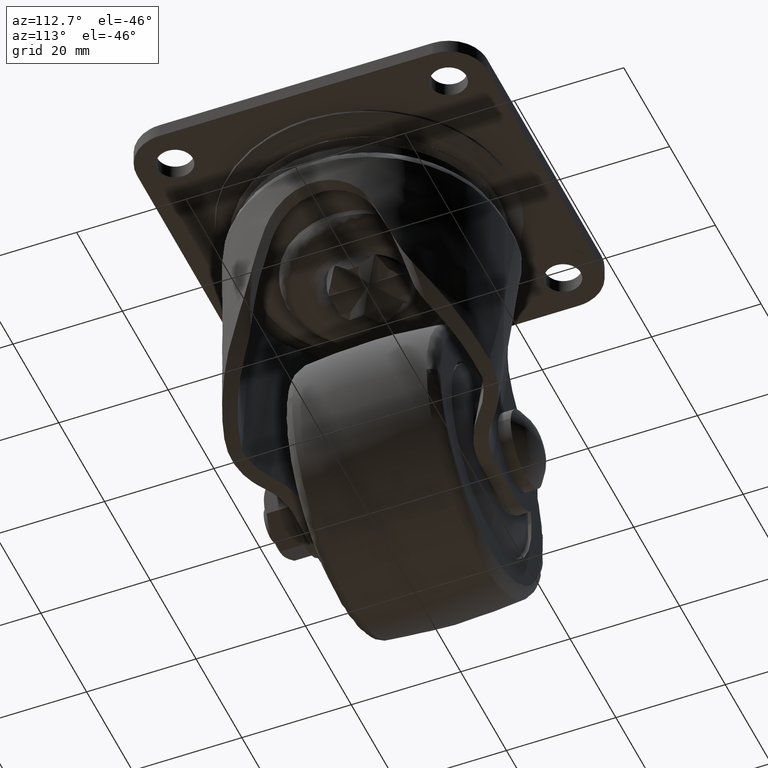
[diagram: clean part render]
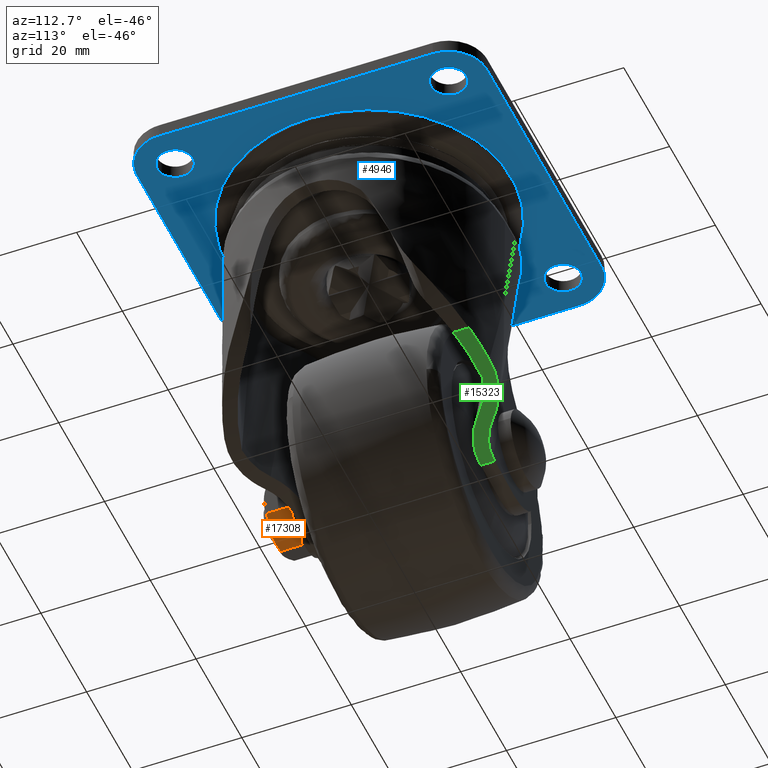
[diagram: same view with three faces highlighted in distinct colors, each labeled with its STEP entity id]
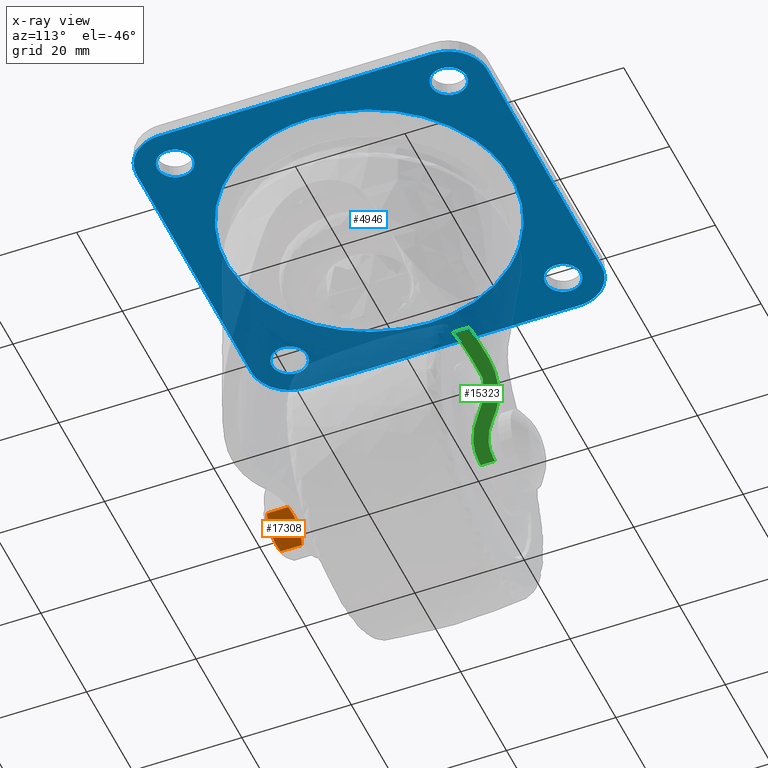
[diagram: x-ray of the same camera — body ghosted, the three highlighted faces saturated]
A machine part, auxiliary view with three faces highlighted in distinct colors.
The next image is the same camera in x-ray (body ghosted, the three faces saturated) — at least one of them is partly hidden behind the body in this view.
Their STEP definitions:

[orange] entity #17308 — the highlighted face is a freeform B-spline surface patch.
#16831=CARTESIAN_POINT('',(-20.0,-24.564101000000051,-53.928078999999997));
#16832=VERTEX_POINT('',#16831);
#16846=CARTESIAN_POINT('',(-16.999999933062298,-25.100000000000001,-52.196027961353487));
#16847=VERTEX_POINT('',#16846);
#16848=CARTESIAN_POINT('',(-20.0,-24.564101000000051,-53.928078999999997));
#16849=CARTESIAN_POINT('',(-19.510157182018119,-24.727382185400678,-53.645268085757152));
#16850=CARTESIAN_POINT('',(-19.016742850308880,-24.861955547747129,-53.360395156873381));
#16851=CARTESIAN_POINT('',(-18.268903120814539,-25.001776452272189,-52.928629639769937));
#16852=CARTESIAN_POINT('',(-18.018333753908468,-25.038018766028792,-52.783963332263603));
#16853=CARTESIAN_POINT('',(-17.514276700824659,-25.087045946738620,-52.492945824646647));
#16854=CARTESIAN_POINT('',(-17.260786492863652,-25.099810543600839,-52.346593168583652));
#16855=CARTESIAN_POINT('',(-17.003821179618861,-25.099999508764171,-52.198234159326667));
#16856=CARTESIAN_POINT('',(-17.001910626792689,-25.100000205893441,-52.197131101015643));
#16857=CARTESIAN_POINT('',(-16.999999933062298,-25.100000000000001,-52.196027961353487));
#16858=B_SPLINE_CURVE_WITH_KNOTS('',3,(#16848,#16849,#16850,#16851,#16852,#16853,#16854,#16855,#16856,#16857),.UNSPECIFIED.,.F.,.U.,(4,2,2,2,4),(0.0,0.249999999999997,0.374999999999995,0.499999999999994,0.500936272813872),.UNSPECIFIED.);
#16859=EDGE_CURVE('',#16832,#16847,#16858,.T.);
#17167=CARTESIAN_POINT('',(-14.0,-24.564101044625300,-50.463977000000099));
#17168=VERTEX_POINT('',#17167);
#17169=CARTESIAN_POINT('',(-16.999999933062298,-25.100000000000001,-52.196027961353487));
#17170=CARTESIAN_POINT('',(-16.874364086421799,-25.099999509185398,-52.123492063416997));
#17171=CARTESIAN_POINT('',(-16.748119019843081,-25.096939593321618,-52.050604432146081));
#17172=CARTESIAN_POINT('',(-16.494846267774321,-25.084703005226931,-51.904377324314943));
#17173=CARTESIAN_POINT('',(-16.367697508052750,-25.075448261747521,-51.830967945506757));
#17174=CARTESIAN_POINT('',(-15.987523585174040,-25.038814426564311,-51.611474404408121));
#17175=CARTESIAN_POINT('',(-15.735773752973399,-25.002544993666319,-51.466126554870478));
#17176=CARTESIAN_POINT('',(-14.985006336294200,-24.862492083861682,-51.032670736594959));
#17177=CARTESIAN_POINT('',(-14.490453367199930,-24.727585741266751,-50.747140415037400));
#17178=CARTESIAN_POINT('',(-14.0,-24.564101044625300,-50.463977000000099));
#17179=B_SPLINE_CURVE_WITH_KNOTS('',3,(#17169,#17170,#17171,#17172,#17173,#17174,#17175,#17176,#17177,#17178),.UNSPECIFIED.,.F.,.U.,(4,2,2,2,4),(0.500936272813872,0.562499999999994,0.624999999999993,0.749999999999996,1.0),.UNSPECIFIED.);
#17180=EDGE_CURVE('',#16847,#17168,#17179,.T.);
#17216=CARTESIAN_POINT('',(-20.0,-20.635898000000001,-53.928078999999997));
#17217=VERTEX_POINT('',#17216);
#17218=CARTESIAN_POINT('',(-20.0,-24.564101000000051,-53.928078999999997));
#17219=CARTESIAN_POINT('',(-20.0,-20.635898000000001,-53.928078999999997));
#17220=QUASI_UNIFORM_CURVE('',1,(#17218,#17219),.UNSPECIFIED.,.F.,.U.);
#17221=EDGE_CURVE('',#16832,#17217,#17220,.T.);
#17263=CARTESIAN_POINT('',(-13.700300392443831,-25.349750394873329,-50.290945331677683));
#17264=CARTESIAN_POINT('',(-20.299699232046951,-25.349750394873329,-54.101110451521947));
#17265=CARTESIAN_POINT('',(-13.700300392443831,-19.850250230975451,-50.290945331677683));
#17266=CARTESIAN_POINT('',(-20.299699232046951,-19.850250230975451,-54.101110451521947));
#17267=B_SPLINE_SURFACE_WITH_KNOTS('',1,1,((#17263,#17265),(#17264,#17266)),.UNSPECIFIED.,.F.,.F.,.U.,(2,2),(2,2),(0.0,7.620329604723983),(0.0,5.499500163897874),.UNSPECIFIED.);
#17268=CARTESIAN_POINT('',(-14.0,-20.635898000000001,-50.463977000000099));
#17269=VERTEX_POINT('',#17268);
#17270=CARTESIAN_POINT('',(-14.0,-24.564101044625300,-50.463977000000099));
#17271=CARTESIAN_POINT('',(-14.0,-20.635898000000001,-50.463977000000099));
#17272=QUASI_UNIFORM_CURVE('',1,(#17270,#17271),.UNSPECIFIED.,.F.,.U.);
#17273=EDGE_CURVE('',#17168,#17269,#17272,.T.);
#17274=ORIENTED_EDGE('',*,*,#17273,.F.);
#17275=ORIENTED_EDGE('',*,*,#17180,.F.);
#17276=ORIENTED_EDGE('',*,*,#16859,.F.);
#17277=ORIENTED_EDGE('',*,*,#17221,.T.);
#17278=CARTESIAN_POINT('',(-16.999999933062298,-20.100000000000001,-52.196027961353487));
#17279=VERTEX_POINT('',#17278);
#17280=CARTESIAN_POINT('',(-16.999999933062298,-20.100000000000001,-52.196027961353487));
#17281=CARTESIAN_POINT('',(-17.125635830246001,-20.100000490791320,-52.268563888471107));
#17282=CARTESIAN_POINT('',(-17.251880945239929,-20.103060403400729,-52.341451547694561));
#17283=CARTESIAN_POINT('',(-17.505153733955790,-20.115296975163901,-52.487678676683920));
#17284=CARTESIAN_POINT('',(-17.632302484306290,-20.124551702735179,-52.561088050081700));
#17285=CARTESIAN_POINT('',(-18.012476384114120,-20.161185472937589,-52.780581577860360));
#17286=CARTESIAN_POINT('',(-18.264226207662780,-20.197454839509810,-52.925929422402781));
#17287=CARTESIAN_POINT('',(-19.014993615491729,-20.337507494125770,-53.359385235568610));
#17288=CARTESIAN_POINT('',(-19.509546601340599,-20.472413592466712,-53.644915566799433));
#17289=CARTESIAN_POINT('',(-20.0,-20.635898000000001,-53.928078999999997));
#17290=B_SPLINE_CURVE_WITH_KNOTS('',3,(#17280,#17281,#17282,#17283,#17284,#17285,#17286,#17287,#17288,#17289),.UNSPECIFIED.,.F.,.U.,(4,2,2,2,4),(0.500936244009351,0.562500000000004,0.625000000000004,0.750000000000002,1.0),.UNSPECIFIED.);
#17291=EDGE_CURVE('',#17279,#17217,#17290,.T.);
#17292=ORIENTED_EDGE('',*,*,#17291,.F.);
#17293=CARTESIAN_POINT('',(-14.0,-20.635898000000001,-50.463977000000099));
#17294=CARTESIAN_POINT('',(-14.489842851531129,-20.472617068724801,-50.746787933612538));
#17295=CARTESIAN_POINT('',(-14.983257210702741,-20.338043960024809,-51.031660878351687));
#17296=CARTESIAN_POINT('',(-15.731096955303260,-20.198223330975932,-51.463426404176687));
#17297=CARTESIAN_POINT('',(-15.981666322869600,-20.161981091368631,-51.608092712064227));
#17298=CARTESIAN_POINT('',(-16.485723366995490,-20.112954015925929,-51.899110214509321));
#17299=CARTESIAN_POINT('',(-16.739213565326711,-20.100189450122340,-52.045462865012560));
#17300=CARTESIAN_POINT('',(-16.996178804312439,-20.100000491191661,-52.193821831396043));
#17301=CARTESIAN_POINT('',(-16.998089298239911,-20.099999794106662,-52.194924855701899));
#17302=CARTESIAN_POINT('',(-16.999999933062298,-20.100000000000001,-52.196027961353487));
#17303=B_SPLINE_CURVE_WITH_KNOTS('',3,(#17293,#17294,#17295,#17296,#17297,#17298,#17299,#17300,#17301,#17302),.UNSPECIFIED.,.F.,.U.,(4,2,2,2,4),(0.0,0.250000000000002,0.375000000000004,0.500000000000005,0.500936244009351),.UNSPECIFIED.);
#17304=EDGE_CURVE('',#17269,#17279,#17303,.T.);
#17305=ORIENTED_EDGE('',*,*,#17304,.F.);
#17306=EDGE_LOOP('',(#17274,#17275,#17276,#17277,#17292,#17305));
#17307=FACE_OUTER_BOUND('',#17306,.T.);
#17308=ADVANCED_FACE('',(#17307),#17267,.T.);

[blue] entity #4946 — the highlighted face is a freeform B-spline surface patch.
#2426=CARTESIAN_POINT('',(3.399927325180301,25.825011963116779,-2.600028999999013));
#2427=VERTEX_POINT('',#2426);
#2433=CARTESIAN_POINT('',(26.047854973329901,0.0,-2.600029000000000));
#2434=VERTEX_POINT('',#2433);
#2435=CARTESIAN_POINT('',(26.047854973329901,0.0,-2.600029000000000));
#2436=CARTESIAN_POINT('',(26.047854973329901,22.843355723038837,-2.600029000000000));
#2437=CARTESIAN_POINT('',(3.399927325180301,25.825011963116772,-2.600028999999013));
#2445=(BOUNDED_CURVE()B_SPLINE_CURVE(2,(#2435,#2436,#2437),.UNSPECIFIED.,.F.,.U.)B_SPLINE_CURVE_WITH_KNOTS((3,3),(0.500000000000000,0.727439384444010),.UNSPECIFIED.)CURVE()GEOMETRIC_REPRESENTATION_ITEM()RATIONAL_B_SPLINE_CURVE((1.0,0.733538186420974,0.951907659707935))REPRESENTATION_ITEM(''));
#2446=EDGE_CURVE('',#2434,#2427,#2445,.T.);
#2448=CARTESIAN_POINT('',(-26.047854973329901,0.0,-2.600029000000000));
#2449=VERTEX_POINT('',#2448);
#2450=CARTESIAN_POINT('',(-26.047854973329901,0.0,-2.600029000000000));
#2451=CARTESIAN_POINT('',(-26.047854973329901,-26.047854973329901,-2.600029000000000));
#2452=CARTESIAN_POINT('',(0.0,-26.047854973329901,-2.600029000000000));
#2453=CARTESIAN_POINT('',(26.047854973329901,-26.047854973329901,-2.600029000000000));
#2454=CARTESIAN_POINT('',(26.047854973329901,0.0,-2.600029000000000));
#2462=(BOUNDED_CURVE()B_SPLINE_CURVE(2,(#2450,#2451,#2452,#2453,#2454),.UNSPECIFIED.,.F.,.U.)B_SPLINE_CURVE_WITH_KNOTS((3,2,3),(0.0,0.250000000000000,0.500000000000000),.UNSPECIFIED.)CURVE()GEOMETRIC_REPRESENTATION_ITEM()RATIONAL_B_SPLINE_CURVE((1.0,0.707106781186548,1.0,0.707106781186548,1.0))REPRESENTATION_ITEM(''));
#2463=EDGE_CURVE('',#2449,#2434,#2462,.T.);
#2465=CARTESIAN_POINT('',(-19.041340173093332,17.774085437067349,-2.600028999999999));
#2466=VERTEX_POINT('',#2465);
#2467=CARTESIAN_POINT('',(-19.041340173093324,17.774085437067349,-2.600029000000000));
#2468=CARTESIAN_POINT('',(-26.047854973329894,10.268020935943273,-2.600028999999999));
#2469=CARTESIAN_POINT('',(-26.047854973329901,0.0,-2.600029000000000));
#2477=(BOUNDED_CURVE()B_SPLINE_CURVE(2,(#2467,#2468,#2469),.UNSPECIFIED.,.F.,.U.)B_SPLINE_CURVE_WITH_KNOTS((3,3),(0.880192317158725,1.0),.UNSPECIFIED.)CURVE()GEOMETRIC_REPRESENTATION_ITEM()RATIONAL_B_SPLINE_CURVE((0.853806076906973,0.859636568536152,1.0))REPRESENTATION_ITEM(''));
#2478=EDGE_CURVE('',#2466,#2449,#2477,.T.);
#2518=CARTESIAN_POINT('',(3.399927325180301,25.825011963116779,-2.600028999999013));
#2519=CARTESIAN_POINT('',(1.707266613872721,26.047854973329898,-2.600028999999999));
#2520=CARTESIAN_POINT('',(0.0,26.047854973329901,-2.600029000000000));
#2521=CARTESIAN_POINT('',(-11.318213266724582,26.047854973329905,-2.600029000000001));
#2522=CARTESIAN_POINT('',(-19.041340173093335,17.774085437067349,-2.600029000000000));
#2530=(BOUNDED_CURVE()B_SPLINE_CURVE(2,(#2518,#2519,#2520,#2521,#2522),.UNSPECIFIED.,.F.,.U.)B_SPLINE_CURVE_WITH_KNOTS((3,2,3),(0.727439384444010,0.750000000000000,0.880192317158725),.UNSPECIFIED.)CURVE()GEOMETRIC_REPRESENTATION_ITEM()RATIONAL_B_SPLINE_CURVE((0.951907659707934,0.973568594765573,1.0,0.847470212650397,0.853806076906973))REPRESENTATION_ITEM(''));
#2531=EDGE_CURVE('',#2427,#2466,#2530,.T.);
#2593=CARTESIAN_POINT('',(-24.801592246332540,-21.756061905139891,-2.600028999999999));
#2594=VERTEX_POINT('',#2593);
#2600=CARTESIAN_POINT('',(-21.750000000000000,-25.0,-2.600029000000000));
#2601=VERTEX_POINT('',#2600);
#2602=CARTESIAN_POINT('',(-21.750000000000000,-25.0,-2.600029000000000));
#2603=CARTESIAN_POINT('',(-21.750000000000011,-21.942705282894874,-2.600028999999999));
#2604=CARTESIAN_POINT('',(-24.801592246332543,-21.756061905139898,-2.600029000000000));
#2612=(BOUNDED_CURVE()B_SPLINE_CURVE(2,(#2602,#2603,#2604),.UNSPECIFIED.,.F.,.U.)B_SPLINE_CURVE_WITH_KNOTS((3,3),(0.500000000000000,0.739332962222907),.UNSPECIFIED.)CURVE()GEOMETRIC_REPRESENTATION_ITEM()RATIONAL_B_SPLINE_CURVE((1.0,0.719603993305498,0.976072041632349))REPRESENTATION_ITEM(''));
#2613=EDGE_CURVE('',#2601,#2594,#2612,.T.);
#2615=CARTESIAN_POINT('',(-25.383611262680009,-28.227280960676499,-2.600028999999999));
#2616=VERTEX_POINT('',#2615);
#2617=CARTESIAN_POINT('',(-25.383611262680002,-28.227280960676499,-2.600028999999999));
#2618=CARTESIAN_POINT('',(-25.192478388914740,-28.250000000000004,-2.600029000000000));
#2619=CARTESIAN_POINT('',(-25.0,-28.250000000000000,-2.600029000000000));
#2620=CARTESIAN_POINT('',(-21.750000000000004,-28.250000000000004,-2.600029000000000));
#2621=CARTESIAN_POINT('',(-21.750000000000000,-25.0,-2.600029000000000));
#2629=(BOUNDED_CURVE()B_SPLINE_CURVE(2,(#2617,#2618,#2619,#2620,#2621),.UNSPECIFIED.,.F.,.U.)B_SPLINE_CURVE_WITH_KNOTS((3,2,3),(0.229562473510874,0.250000000000000,0.500000000000000),.UNSPECIFIED.)CURVE()GEOMETRIC_REPRESENTATION_ITEM()RATIONAL_B_SPLINE_CURVE((0.956026754178536,0.976055948328059,1.0,0.707106781186547,1.0))REPRESENTATION_ITEM(''));
#2630=EDGE_CURVE('',#2616,#2601,#2629,.T.);
#2674=CARTESIAN_POINT('',(-28.250000000000000,-25.0,-2.600029000000000));
#2675=VERTEX_POINT('',#2674);
#2676=CARTESIAN_POINT('',(-28.250000000000000,-25.0,-2.600029000000000));
#2677=CARTESIAN_POINT('',(-28.250000000000000,-27.886567209259894,-2.600028999999998));
#2678=CARTESIAN_POINT('',(-25.383611262680002,-28.227280960676499,-2.600028999999999));
#2686=(BOUNDED_CURVE()B_SPLINE_CURVE(2,(#2676,#2677,#2678),.UNSPECIFIED.,.F.,.U.)B_SPLINE_CURVE_WITH_KNOTS((3,3),(0.0,0.229562473510874),.UNSPECIFIED.)CURVE()GEOMETRIC_REPRESENTATION_ITEM()RATIONAL_B_SPLINE_CURVE((1.0,0.731050832858488,0.956026754178536))REPRESENTATION_ITEM(''));
#2687=EDGE_CURVE('',#2675,#2616,#2686,.T.);
#2689=CARTESIAN_POINT('',(-24.801592246332536,-21.756061905139898,-2.600029000000000));
#2690=CARTESIAN_POINT('',(-24.900703519099906,-21.749999999999996,-2.600029000000000));
#2691=CARTESIAN_POINT('',(-25.0,-21.750000000000000,-2.600029000000000));
#2692=CARTESIAN_POINT('',(-28.250000000000004,-21.750000000000004,-2.600029000000000));
#2693=CARTESIAN_POINT('',(-28.250000000000000,-25.0,-2.600029000000000));
#2701=(BOUNDED_CURVE()B_SPLINE_CURVE(2,(#2689,#2690,#2691,#2692,#2693),.UNSPECIFIED.,.F.,.U.)B_SPLINE_CURVE_WITH_KNOTS((3,2,3),(0.739332962222907,0.750000000000000,1.0),.UNSPECIFIED.)CURVE()GEOMETRIC_REPRESENTATION_ITEM()RATIONAL_B_SPLINE_CURVE((0.976072041632351,0.987502787881051,1.0,0.707106781186547,1.0))REPRESENTATION_ITEM(''));
#2702=EDGE_CURVE('',#2594,#2675,#2701,.T.);
#2779=CARTESIAN_POINT('',(25.198407753667460,28.243938094860109,-2.600028999999999));
#2780=VERTEX_POINT('',#2779);
#2786=CARTESIAN_POINT('',(28.250000000000000,25.0,-2.600029000000000));
#2787=VERTEX_POINT('',#2786);
#2788=CARTESIAN_POINT('',(28.250000000000000,25.0,-2.600029000000000));
#2789=CARTESIAN_POINT('',(28.249999999999989,28.057294717105123,-2.600028999999999));
#2790=CARTESIAN_POINT('',(25.198407753667460,28.243938094860106,-2.600029000000000));
#2798=(BOUNDED_CURVE()B_SPLINE_CURVE(2,(#2788,#2789,#2790),.UNSPECIFIED.,.F.,.U.)B_SPLINE_CURVE_WITH_KNOTS((3,3),(0.500000000000000,0.739332962222907),.UNSPECIFIED.)CURVE()GEOMETRIC_REPRESENTATION_ITEM()RATIONAL_B_SPLINE_CURVE((1.0,0.719603993305498,0.976072041632349))REPRESENTATION_ITEM(''));
#2799=EDGE_CURVE('',#2787,#2780,#2798,.T.);
#2801=CARTESIAN_POINT('',(24.616388737319991,21.772719039323501,-2.600029000000000));
#2802=VERTEX_POINT('',#2801);
#2803=CARTESIAN_POINT('',(24.616388737319998,21.772719039323498,-2.600029000000000));
#2804=CARTESIAN_POINT('',(24.807521611085271,21.750000000000000,-2.600028999999999));
#2805=CARTESIAN_POINT('',(25.0,21.750000000000000,-2.600029000000000));
#2806=CARTESIAN_POINT('',(28.250000000000004,21.750000000000004,-2.600029000000000));
#2807=CARTESIAN_POINT('',(28.250000000000000,25.0,-2.600029000000000));
#2815=(BOUNDED_CURVE()B_SPLINE_CURVE(2,(#2803,#2804,#2805,#2806,#2807),.UNSPECIFIED.,.F.,.U.)B_SPLINE_CURVE_WITH_KNOTS((3,2,3),(0.229562473510874,0.250000000000000,0.500000000000000),.UNSPECIFIED.)CURVE()GEOMETRIC_REPRESENTATION_ITEM()RATIONAL_B_SPLINE_CURVE((0.956026754178536,0.976055948328059,1.0,0.707106781186547,1.0))REPRESENTATION_ITEM(''));
#2816=EDGE_CURVE('',#2802,#2787,#2815,.T.);
#2860=CARTESIAN_POINT('',(21.750000000000000,25.0,-2.600029000000000));
#2861=VERTEX_POINT('',#2860);
#2862=CARTESIAN_POINT('',(21.750000000000000,25.0,-2.600029000000000));
#2863=CARTESIAN_POINT('',(21.750000000000007,22.113432790740102,-2.600029000000000));
#2864=CARTESIAN_POINT('',(24.616388737319994,21.772719039323505,-2.600028999999999));
#2872=(BOUNDED_CURVE()B_SPLINE_CURVE(2,(#2862,#2863,#2864),.UNSPECIFIED.,.F.,.U.)B_SPLINE_CURVE_WITH_KNOTS((3,3),(0.0,0.229562473510874),.UNSPECIFIED.)CURVE()GEOMETRIC_REPRESENTATION_ITEM()RATIONAL_B_SPLINE_CURVE((1.0,0.731050832858488,0.956026754178536))REPRESENTATION_ITEM(''));
#2873=EDGE_CURVE('',#2861,#2802,#2872,.T.);
#2875=CARTESIAN_POINT('',(25.198407753667468,28.243938094860106,-2.600029000000000));
#2876=CARTESIAN_POINT('',(25.099296480900097,28.249999999999996,-2.600029000000000));
#2877=CARTESIAN_POINT('',(25.0,28.250000000000000,-2.600029000000000));
#2878=CARTESIAN_POINT('',(21.750000000000004,28.250000000000004,-2.600029000000000));
#2879=CARTESIAN_POINT('',(21.750000000000000,25.0,-2.600029000000000));
#2887=(BOUNDED_CURVE()B_SPLINE_CURVE(2,(#2875,#2876,#2877,#2878,#2879),.UNSPECIFIED.,.F.,.U.)B_SPLINE_CURVE_WITH_KNOTS((3,2,3),(0.739332962222907,0.750000000000000,1.0),.UNSPECIFIED.)CURVE()GEOMETRIC_REPRESENTATION_ITEM()RATIONAL_B_SPLINE_CURVE((0.976072041632351,0.987502787881051,1.0,0.707106781186547,1.0))REPRESENTATION_ITEM(''));
#2888=EDGE_CURVE('',#2780,#2861,#2887,.T.);
#2965=CARTESIAN_POINT('',(25.198407753667460,-21.756061905139891,-2.600028999999999));
#2966=VERTEX_POINT('',#2965);
#2972=CARTESIAN_POINT('',(28.250000000000000,-25.0,-2.600029000000000));
#2973=VERTEX_POINT('',#2972);
#2974=CARTESIAN_POINT('',(28.250000000000000,-25.0,-2.600029000000000));
#2975=CARTESIAN_POINT('',(28.249999999999989,-21.942705282894874,-2.600028999999999));
#2976=CARTESIAN_POINT('',(25.198407753667460,-21.756061905139898,-2.600029000000000));
#2984=(BOUNDED_CURVE()B_SPLINE_CURVE(2,(#2974,#2975,#2976),.UNSPECIFIED.,.F.,.U.)B_SPLINE_CURVE_WITH_KNOTS((3,3),(0.500000000000000,0.739332962222907),.UNSPECIFIED.)CURVE()GEOMETRIC_REPRESENTATION_ITEM()RATIONAL_B_SPLINE_CURVE((1.0,0.719603993305498,0.976072041632349))REPRESENTATION_ITEM(''));
#2985=EDGE_CURVE('',#2973,#2966,#2984,.T.);
#2987=CARTESIAN_POINT('',(24.616388737319991,-28.227280960676499,-2.600029000000000));
#2988=VERTEX_POINT('',#2987);
#2989=CARTESIAN_POINT('',(24.616388737319994,-28.227280960676499,-2.600028999999999));
#2990=CARTESIAN_POINT('',(24.807521611085267,-28.250000000000004,-2.600028999999999));
#2991=CARTESIAN_POINT('',(25.0,-28.250000000000000,-2.600029000000000));
#2992=CARTESIAN_POINT('',(28.250000000000004,-28.250000000000004,-2.600029000000000));
#2993=CARTESIAN_POINT('',(28.250000000000000,-25.0,-2.600029000000000));
#3001=(BOUNDED_CURVE()B_SPLINE_CURVE(2,(#2989,#2990,#2991,#2992,#2993),.UNSPECIFIED.,.F.,.U.)B_SPLINE_CURVE_WITH_KNOTS((3,2,3),(0.229562473510874,0.250000000000000,0.500000000000000),.UNSPECIFIED.)CURVE()GEOMETRIC_REPRESENTATION_ITEM()RATIONAL_B_SPLINE_CURVE((0.956026754178536,0.976055948328059,1.0,0.707106781186547,1.0))REPRESENTATION_ITEM(''));
#3002=EDGE_CURVE('',#2988,#2973,#3001,.T.);
#3046=CARTESIAN_POINT('',(21.750000000000000,-25.0,-2.600029000000000));
#3047=VERTEX_POINT('',#3046);
#3048=CARTESIAN_POINT('',(21.750000000000000,-25.0,-2.600029000000000));
#3049=CARTESIAN_POINT('',(21.750000000000007,-27.886567209259894,-2.600029000000000));
#3050=CARTESIAN_POINT('',(24.616388737319994,-28.227280960676499,-2.600028999999999));
#3058=(BOUNDED_CURVE()B_SPLINE_CURVE(2,(#3048,#3049,#3050),.UNSPECIFIED.,.F.,.U.)B_SPLINE_CURVE_WITH_KNOTS((3,3),(0.0,0.229562473510874),.UNSPECIFIED.)CURVE()GEOMETRIC_REPRESENTATION_ITEM()RATIONAL_B_SPLINE_CURVE((1.0,0.731050832858488,0.956026754178536))REPRESENTATION_ITEM(''));
#3059=EDGE_CURVE('',#3047,#2988,#3058,.T.);
#3061=CARTESIAN_POINT('',(25.198407753667468,-21.756061905139898,-2.600029000000000));
#3062=CARTESIAN_POINT('',(25.099296480900097,-21.749999999999996,-2.600029000000000));
#3063=CARTESIAN_POINT('',(25.0,-21.750000000000000,-2.600029000000000));
#3064=CARTESIAN_POINT('',(21.750000000000004,-21.750000000000004,-2.600029000000000));
#3065=CARTESIAN_POINT('',(21.750000000000000,-25.0,-2.600029000000000));
#3073=(BOUNDED_CURVE()B_SPLINE_CURVE(2,(#3061,#3062,#3063,#3064,#3065),.UNSPECIFIED.,.F.,.U.)B_SPLINE_CURVE_WITH_KNOTS((3,2,3),(0.739332962222907,0.750000000000000,1.0),.UNSPECIFIED.)CURVE()GEOMETRIC_REPRESENTATION_ITEM()RATIONAL_B_SPLINE_CURVE((0.976072041632351,0.987502787881051,1.0,0.707106781186547,1.0))REPRESENTATION_ITEM(''));
#3074=EDGE_CURVE('',#2966,#3047,#3073,.T.);
#3151=CARTESIAN_POINT('',(-24.801592246332540,28.243938094860109,-2.600028999999999));
#3152=VERTEX_POINT('',#3151);
#3158=CARTESIAN_POINT('',(-21.750000000000000,25.0,-2.600029000000000));
#3159=VERTEX_POINT('',#3158);
#3160=CARTESIAN_POINT('',(-21.750000000000000,25.0,-2.600029000000000));
#3161=CARTESIAN_POINT('',(-21.750000000000011,28.057294717105123,-2.600028999999999));
#3162=CARTESIAN_POINT('',(-24.801592246332543,28.243938094860106,-2.600029000000000));
#3170=(BOUNDED_CURVE()B_SPLINE_CURVE(2,(#3160,#3161,#3162),.UNSPECIFIED.,.F.,.U.)B_SPLINE_CURVE_WITH_KNOTS((3,3),(0.500000000000000,0.739332962222907),.UNSPECIFIED.)CURVE()GEOMETRIC_REPRESENTATION_ITEM()RATIONAL_B_SPLINE_CURVE((1.0,0.719603993305498,0.976072041632349))REPRESENTATION_ITEM(''));
#3171=EDGE_CURVE('',#3159,#3152,#3170,.T.);
#3173=CARTESIAN_POINT('',(-25.383611262680009,21.772719039323501,-2.600029000000000));
#3174=VERTEX_POINT('',#3173);
#3175=CARTESIAN_POINT('',(-25.383611262680009,21.772719039323498,-2.600029000000000));
#3176=CARTESIAN_POINT('',(-25.192478388914736,21.750000000000004,-2.600029000000000));
#3177=CARTESIAN_POINT('',(-25.0,21.750000000000000,-2.600029000000000));
#3178=CARTESIAN_POINT('',(-21.750000000000004,21.750000000000004,-2.600029000000000));
#3179=CARTESIAN_POINT('',(-21.750000000000000,25.0,-2.600029000000000));
#3187=(BOUNDED_CURVE()B_SPLINE_CURVE(2,(#3175,#3176,#3177,#3178,#3179),.UNSPECIFIED.,.F.,.U.)B_SPLINE_CURVE_WITH_KNOTS((3,2,3),(0.229562473510874,0.250000000000000,0.500000000000000),.UNSPECIFIED.)CURVE()GEOMETRIC_REPRESENTATION_ITEM()RATIONAL_B_SPLINE_CURVE((0.956026754178537,0.976055948328059,1.0,0.707106781186547,1.0))REPRESENTATION_ITEM(''));
#3188=EDGE_CURVE('',#3174,#3159,#3187,.T.);
#3232=CARTESIAN_POINT('',(-28.250000000000000,25.0,-2.600029000000000));
#3233=VERTEX_POINT('',#3232);
#3234=CARTESIAN_POINT('',(-28.250000000000000,25.0,-2.600029000000000));
#3235=CARTESIAN_POINT('',(-28.250000000000004,22.113432790740106,-2.600028999999999));
#3236=CARTESIAN_POINT('',(-25.383611262680009,21.772719039323498,-2.600029000000000));
#3244=(BOUNDED_CURVE()B_SPLINE_CURVE(2,(#3234,#3235,#3236),.UNSPECIFIED.,.F.,.U.)B_SPLINE_CURVE_WITH_KNOTS((3,3),(0.0,0.229562473510874),.UNSPECIFIED.)CURVE()GEOMETRIC_REPRESENTATION_ITEM()RATIONAL_B_SPLINE_CURVE((1.0,0.731050832858488,0.956026754178537))REPRESENTATION_ITEM(''));
#3245=EDGE_CURVE('',#3233,#3174,#3244,.T.);
#3247=CARTESIAN_POINT('',(-24.801592246332536,28.243938094860106,-2.600029000000000));
#3248=CARTESIAN_POINT('',(-24.900703519099906,28.249999999999996,-2.600029000000000));
#3249=CARTESIAN_POINT('',(-25.0,28.250000000000000,-2.600029000000000));
#3250=CARTESIAN_POINT('',(-28.250000000000004,28.250000000000004,-2.600029000000000));
#3251=CARTESIAN_POINT('',(-28.250000000000000,25.0,-2.600029000000000));
#3259=(BOUNDED_CURVE()B_SPLINE_CURVE(2,(#3247,#3248,#3249,#3250,#3251),.UNSPECIFIED.,.F.,.U.)B_SPLINE_CURVE_WITH_KNOTS((3,2,3),(0.739332962222907,0.750000000000000,1.0),.UNSPECIFIED.)CURVE()GEOMETRIC_REPRESENTATION_ITEM()RATIONAL_B_SPLINE_CURVE((0.976072041632351,0.987502787881051,1.0,0.707106781186547,1.0))REPRESENTATION_ITEM(''));
#3260=EDGE_CURVE('',#3152,#3233,#3259,.T.);
#4821=CARTESIAN_POINT('',(-35.196799875955577,35.196799875955577,-2.600029000000000));
#4822=CARTESIAN_POINT('',(35.196801592569351,35.196799875955577,-2.600029000000000));
#4823=CARTESIAN_POINT('',(-35.196799875955577,-35.196801592569351,-2.600029000000000));
#4824=CARTESIAN_POINT('',(35.196801592569351,-35.196801592569351,-2.600029000000000));
#4825=B_SPLINE_SURFACE_WITH_KNOTS('',1,1,((#4821,#4823),(#4822,#4824)),.UNSPECIFIED.,.F.,.F.,.U.,(2,2),(2,2),(0.0,70.393601468524935),(0.0,70.393601468524935),.UNSPECIFIED.);
#4826=CARTESIAN_POINT('',(-25.0,32.0,-2.600029000000000));
#4827=VERTEX_POINT('',#4826);
#4828=CARTESIAN_POINT('',(-32.0,25.0,-2.600029000000000));
#4829=VERTEX_POINT('',#4828);
#4830=CARTESIAN_POINT('',(-25.0,32.0,-2.600029000000000));
#4831=CARTESIAN_POINT('',(-32.0,32.0,-2.600029000000000));
#4832=CARTESIAN_POINT('',(-32.0,25.0,-2.600029000000000));
#4840=(BOUNDED_CURVE()B_SPLINE_CURVE(2,(#4830,#4831,#4832),.UNSPECIFIED.,.F.,.U.)CURVE()GEOMETRIC_REPRESENTATION_ITEM()QUASI_UNIFORM_CURVE()RATIONAL_B_SPLINE_CURVE((1.0,0.707106781186547,1.0))REPRESENTATION_ITEM(''));
#4841=EDGE_CURVE('',#4827,#4829,#4840,.T.);
#4842=ORIENTED_EDGE('',*,*,#4841,.F.);
#4843=CARTESIAN_POINT('',(25.0,32.0,-2.600029000000000));
#4844=VERTEX_POINT('',#4843);
#4845=CARTESIAN_POINT('',(25.0,32.0,-2.600029000000000));
#4846=CARTESIAN_POINT('',(-25.0,32.0,-2.600029000000000));
#4847=QUASI_UNIFORM_CURVE('',1,(#4845,#4846),.UNSPECIFIED.,.F.,.U.);
#4848=EDGE_CURVE('',#4844,#4827,#4847,.T.);
#4849=ORIENTED_EDGE('',*,*,#4848,.F.);
#4850=CARTESIAN_POINT('',(32.0,25.0,-2.600029000000000));
#4851=VERTEX_POINT('',#4850);
#4852=CARTESIAN_POINT('',(32.0,25.0,-2.600029000000000));
#4853=CARTESIAN_POINT('',(32.0,32.0,-2.600029000000000));
#4854=CARTESIAN_POINT('',(25.0,32.0,-2.600029000000000));
#4862=(BOUNDED_CURVE()B_SPLINE_CURVE(2,(#4852,#4853,#4854),.UNSPECIFIED.,.F.,.U.)CURVE()GEOMETRIC_REPRESENTATION_ITEM()QUASI_UNIFORM_CURVE()RATIONAL_B_SPLINE_CURVE((1.0,0.707106781186547,1.0))REPRESENTATION_ITEM(''));
#4863=EDGE_CURVE('',#4851,#4844,#4862,.T.);
#4864=ORIENTED_EDGE('',*,*,#4863,.F.);
#4865=CARTESIAN_POINT('',(32.0,-25.0,-2.600029000000000));
#4866=VERTEX_POINT('',#4865);
#4867=CARTESIAN_POINT('',(32.0,-25.0,-2.600029000000000));
#4868=CARTESIAN_POINT('',(32.0,25.0,-2.600029000000000));
#4869=QUASI_UNIFORM_CURVE('',1,(#4867,#4868),.UNSPECIFIED.,.F.,.U.);
#4870=EDGE_CURVE('',#4866,#4851,#4869,.T.);
#4871=ORIENTED_EDGE('',*,*,#4870,.F.);
#4872=CARTESIAN_POINT('',(25.0,-32.0,-2.600029000000000));
#4873=VERTEX_POINT('',#4872);
#4874=CARTESIAN_POINT('',(25.0,-32.0,-2.600029000000000));
#4875=CARTESIAN_POINT('',(32.0,-32.0,-2.600029000000000));
#4876=CARTESIAN_POINT('',(32.0,-25.0,-2.600029000000000));
#4884=(BOUNDED_CURVE()B_SPLINE_CURVE(2,(#4874,#4875,#4876),.UNSPECIFIED.,.F.,.U.)CURVE()GEOMETRIC_REPRESENTATION_ITEM()QUASI_UNIFORM_CURVE()RATIONAL_B_SPLINE_CURVE((1.0,0.707106781186547,1.0))REPRESENTATION_ITEM(''));
#4885=EDGE_CURVE('',#4873,#4866,#4884,.T.);
#4886=ORIENTED_EDGE('',*,*,#4885,.F.);
#4887=CARTESIAN_POINT('',(-25.0,-32.0,-2.600029000000000));
#4888=VERTEX_POINT('',#4887);
#4889=CARTESIAN_POINT('',(-25.0,-32.0,-2.600029000000000));
#4890=CARTESIAN_POINT('',(25.0,-32.0,-2.600029000000000));
#4891=QUASI_UNIFORM_CURVE('',1,(#4889,#4890),.UNSPECIFIED.,.F.,.U.);
#4892=EDGE_CURVE('',#4888,#4873,#4891,.T.);
#4893=ORIENTED_EDGE('',*,*,#4892,.F.);
#4894=CARTESIAN_POINT('',(-32.0,-25.0,-2.600029000000000));
#4895=VERTEX_POINT('',#4894);
#4896=CARTESIAN_POINT('',(-32.0,-25.0,-2.600029000000000));
#4897=CARTESIAN_POINT('',(-32.0,-32.0,-2.600029000000000));
#4898=CARTESIAN_POINT('',(-25.0,-32.0,-2.600029000000000));
#4906=(BOUNDED_CURVE()B_SPLINE_CURVE(2,(#4896,#4897,#4898),.UNSPECIFIED.,.F.,.U.)CURVE()GEOMETRIC_REPRESENTATION_ITEM()QUASI_UNIFORM_CURVE()RATIONAL_B_SPLINE_CURVE((1.0,0.707106781186547,1.0))REPRESENTATION_ITEM(''));
#4907=EDGE_CURVE('',#4895,#4888,#4906,.T.);
#4908=ORIENTED_EDGE('',*,*,#4907,.F.);
#4909=CARTESIAN_POINT('',(-32.0,25.0,-2.600029000000000));
#4910=CARTESIAN_POINT('',(-32.0,-25.0,-2.600029000000000));
#4911=QUASI_UNIFORM_CURVE('',1,(#4909,#4910),.UNSPECIFIED.,.F.,.U.);
#4912=EDGE_CURVE('',#4829,#4895,#4911,.T.);
#4913=ORIENTED_EDGE('',*,*,#4912,.F.);
#4914=EDGE_LOOP('',(#4842,#4849,#4864,#4871,#4886,#4893,#4908,#4913));
#4915=FACE_OUTER_BOUND('',#4914,.T.);
#4916=ORIENTED_EDGE('',*,*,#2463,.T.);
#4917=ORIENTED_EDGE('',*,*,#2446,.T.);
#4918=ORIENTED_EDGE('',*,*,#2531,.T.);
#4919=ORIENTED_EDGE('',*,*,#2478,.T.);
#4920=EDGE_LOOP('',(#4916,#4917,#4918,#4919));
#4921=FACE_BOUND('',#4920,.T.);
#4922=ORIENTED_EDGE('',*,*,#3171,.T.);
#4923=ORIENTED_EDGE('',*,*,#3260,.T.);
#4924=ORIENTED_EDGE('',*,*,#3245,.T.);
#4925=ORIENTED_EDGE('',*,*,#3188,.T.);
#4926=EDGE_LOOP('',(#4922,#4923,#4924,#4925));
#4927=FACE_BOUND('',#4926,.T.);
#4928=ORIENTED_EDGE('',*,*,#2985,.T.);
#4929=ORIENTED_EDGE('',*,*,#3074,.T.);
#4930=ORIENTED_EDGE('',*,*,#3059,.T.);
#4931=ORIENTED_EDGE('',*,*,#3002,.T.);
#4932=EDGE_LOOP('',(#4928,#4929,#4930,#4931));
#4933=FACE_BOUND('',#4932,.T.);
#4934=ORIENTED_EDGE('',*,*,#2799,.T.);
#4935=ORIENTED_EDGE('',*,*,#2888,.T.);
#4936=ORIENTED_EDGE('',*,*,#2873,.T.);
#4937=ORIENTED_EDGE('',*,*,#2816,.T.);
#4938=EDGE_LOOP('',(#4934,#4935,#4936,#4937));
#4939=FACE_BOUND('',#4938,.T.);
#4940=ORIENTED_EDGE('',*,*,#2613,.T.);
#4941=ORIENTED_EDGE('',*,*,#2702,.T.);
#4942=ORIENTED_EDGE('',*,*,#2687,.T.);
#4943=ORIENTED_EDGE('',*,*,#2630,.T.);
#4944=EDGE_LOOP('',(#4940,#4941,#4942,#4943));
#4945=FACE_BOUND('',#4944,.T.);
#4946=ADVANCED_FACE('',(#4915,#4921,#4927,#4933,#4939,#4945),#4825,.T.);

[green] entity #15323 — the highlighted face is a freeform B-spline surface patch.
#12255=CARTESIAN_POINT('',(-0.751148024159027,23.331325468835349,-54.171337049947702));
#12256=VERTEX_POINT('',#12255);
#12257=CARTESIAN_POINT('',(5.379990446006450,24.209413516251850,-51.029089300138587));
#12258=VERTEX_POINT('',#12257);
#12259=CARTESIAN_POINT('',(-0.751148024159029,23.331325468835349,-54.171337049947702));
#12260=CARTESIAN_POINT('',(-0.256088369004749,23.593079119575670,-53.969356305878520));
#12261=CARTESIAN_POINT('',(0.248282868619021,23.804998498500652,-53.751994898475999));
#12262=CARTESIAN_POINT('',(1.016253354291705,24.053484017957061,-53.401139915102704));
#12263=CARTESIAN_POINT('',(1.274164340758818,24.124680611424711,-53.280045779375392));
#12264=CARTESIAN_POINT('',(1.663739438323130,24.214150183187730,-53.091901257243592));
#12265=CARTESIAN_POINT('',(1.794050156484451,24.241082262176729,-53.028101980922713));
#12266=CARTESIAN_POINT('',(2.055558321085851,24.289141553489991,-52.898279002275522));
#12267=CARTESIAN_POINT('',(2.186949781362028,24.310294920008591,-52.832156107586179));
#12268=CARTESIAN_POINT('',(2.843921203935429,24.401125350667790,-52.496940011913672));
#12269=CARTESIAN_POINT('',(3.361716700940553,24.425404938795271,-52.218090068844930));
#12270=CARTESIAN_POINT('',(4.382173474162331,24.384582677000250,-51.639325290400834));
#12271=CARTESIAN_POINT('',(4.884832940859287,24.319450987633481,-51.339409151504881));
#12272=CARTESIAN_POINT('',(5.379990446006450,24.209413516251850,-51.029089300138587));
#12273=B_SPLINE_CURVE_WITH_KNOTS('',3,(#12259,#12260,#12261,#12262,#12263,#12264,#12265,#12266,#12267,#12268,#12269,#12270,#12271,#12272),.UNSPECIFIED.,.F.,.U.,(4,2,2,2,2,2,4),(0.0,0.250000000000002,0.375000000000002,0.437500000000001,0.500000000000001,0.750000000000000,1.0),.UNSPECIFIED.);
#12274=EDGE_CURVE('',#12256,#12258,#12273,.T.);
#14320=CARTESIAN_POINT('',(-2.363093171500450,18.992759619362751,-54.788773432004099));
#14321=VERTEX_POINT('',#14320);
#14327=CARTESIAN_POINT('',(3.030207763669890,21.992222282184350,-52.392832106893998));
#14328=VERTEX_POINT('',#14327);
#14329=CARTESIAN_POINT('',(-2.363093171500450,18.992759619362751,-54.788773432004099));
#14330=CARTESIAN_POINT('',(-1.978302232287003,19.381633796997161,-54.650828714705142));
#14331=CARTESIAN_POINT('',(-1.573659438379042,19.735607155697011,-54.499120800353040));
#14332=CARTESIAN_POINT('',(-0.728345244207911,20.376934541951481,-54.164814974848291));
#14333=CARTESIAN_POINT('',(-0.287659816489162,20.664275775048811,-53.982228733948688));
#14334=CARTESIAN_POINT('',(0.284891205083294,20.981317063784470,-53.731751778072329));
#14335=CARTESIAN_POINT('',(0.400491406045306,21.042609130953561,-53.680540268348672));
#14336=CARTESIAN_POINT('',(0.633872080726804,21.160910104279591,-53.575794148812022));
#14337=CARTESIAN_POINT('',(0.751355413772222,21.217760662768178,-53.522390783008689));
#14338=CARTESIAN_POINT('',(1.104602336331134,21.380766457678359,-53.359726446205450));
#14339=CARTESIAN_POINT('',(1.341773466312233,21.479698096959570,-53.247738042900679));
#14340=CARTESIAN_POINT('',(2.057874208995937,21.747972723089489,-52.900755176326861));
#14341=CARTESIAN_POINT('',(2.541358777010438,21.888923251965799,-52.654768406527253));
#14342=CARTESIAN_POINT('',(3.030207763669890,21.992222282184350,-52.392832106893998));
#14343=B_SPLINE_CURVE_WITH_KNOTS('',3,(#14329,#14330,#14331,#14332,#14333,#14334,#14335,#14336,#14337,#14338,#14339,#14340,#14341,#14342),.UNSPECIFIED.,.F.,.U.,(4,2,2,2,2,2,4),(0.0,0.249999999999999,0.499999999999997,0.562499999999997,0.624999999999997,0.749999999999998,1.0),.UNSPECIFIED.);
#14344=EDGE_CURVE('',#14321,#14328,#14343,.T.);
#14448=CARTESIAN_POINT('',(10.293669418560240,19.669274768058798,-47.399080797165801));
#14449=VERTEX_POINT('',#14448);
#14450=CARTESIAN_POINT('',(3.030207763669890,21.992222282184350,-52.392832106893998));
#14451=CARTESIAN_POINT('',(3.693488774317664,21.900831824131661,-52.037431199277073));
#14452=CARTESIAN_POINT('',(4.343787883389974,21.780720196913030,-51.664919716818119));
#14453=CARTESIAN_POINT('',(5.300385056957287,21.560449545777299,-51.080904617004123));
#14454=CARTESIAN_POINT('',(5.616105766779200,21.480330216755490,-50.882022115430253));
#14455=CARTESIAN_POINT('',(6.085021018882328,21.350382356081742,-50.577410212656581));
#14456=CARTESIAN_POINT('',(6.240652549785909,21.305405786543730,-50.474754500796550));
#14457=CARTESIAN_POINT('',(6.549827895347898,21.212397660749311,-50.267711888037390));
#14458=CARTESIAN_POINT('',(6.703306601425243,21.164388749169309,-50.163371165079973));
#14459=CARTESIAN_POINT('',(7.160473569373371,21.015953471993889,-49.847919840833697));
#14460=CARTESIAN_POINT('',(7.611104306020179,20.858705259857910,-49.527611075597058));
#14461=CARTESIAN_POINT('',(8.052237000072717,20.688793160764391,-49.200173769269782));
#14462=CARTESIAN_POINT('',(8.344243743536485,20.572755758592081,-48.980313498046442));
#14463=CARTESIAN_POINT('',(8.489212109219832,20.513350570867772,-48.869591889089563));
#14464=CARTESIAN_POINT('',(9.206905020252854,20.210425082278672,-48.313688695388102));
#14465=CARTESIAN_POINT('',(9.759915970702259,19.948607972157902,-47.860372689846272));
#14466=CARTESIAN_POINT('',(10.293669418560240,19.669274768058830,-47.399080797165787));
#14467=B_SPLINE_CURVE_WITH_KNOTS('',3,(#14450,#14451,#14452,#14453,#14454,#14455,#14456,#14457,#14458,#14459,#14460,#14461,#14462,#14463,#14464,#14465,#14466),.UNSPECIFIED.,.F.,.U.,(4,2,2,2,2,1,2,2,4),(0.0,0.250000000000003,0.375000000000004,0.437500000000004,0.500000000000004,0.625000000000004,0.687500000000004,0.750000000000003,1.0),.UNSPECIFIED.);
#14468=EDGE_CURVE('',#14328,#14449,#14467,.T.);
#14716=CARTESIAN_POINT('',(-10.831166104623200,15.500000000000000,-56.817643725140712));
#14717=VERTEX_POINT('',#14716);
#14764=CARTESIAN_POINT('',(-11.723227524179020,15.500000000000000,-56.920568075559402));
#14765=VERTEX_POINT('',#14764);
#14779=CARTESIAN_POINT('',(-10.831166104623200,15.500000000000000,-56.817643725140627));
#14780=CARTESIAN_POINT('',(-11.276619131908376,15.500000000000005,-56.874112764734960));
#14781=CARTESIAN_POINT('',(-11.723227524179020,15.500000000000000,-56.920568075559402));
#14789=(BOUNDED_CURVE()B_SPLINE_CURVE(2,(#14779,#14780,#14781),.UNSPECIFIED.,.F.,.U.)CURVE()GEOMETRIC_REPRESENTATION_ITEM()QUASI_UNIFORM_CURVE()RATIONAL_B_SPLINE_CURVE((1.0,0.999937000593904,1.0))REPRESENTATION_ITEM(''));
#14790=EDGE_CURVE('',#14717,#14765,#14789,.T.);
#14893=CARTESIAN_POINT('',(-2.363093171500450,18.992759619362751,-54.788773432004099));
#14894=CARTESIAN_POINT('',(-2.638987515133976,18.713937601843870,-54.887679521931062));
#14895=CARTESIAN_POINT('',(-2.926174597801942,18.451239314167779,-54.987213921993849));
#14896=CARTESIAN_POINT('',(-3.522883185453705,17.957025393609371,-55.185906709697292));
#14897=CARTESIAN_POINT('',(-3.832405759870344,17.725512541783100,-55.285068030783208));
#14898=CARTESIAN_POINT('',(-4.474139098929705,17.293510636043159,-55.481512804122943));
#14899=CARTESIAN_POINT('',(-4.806348139066568,17.093020279193091,-55.578798817088590));
#14900=CARTESIAN_POINT('',(-5.236389989063070,16.862241973400451,-55.698320728922539));
#14901=CARTESIAN_POINT('',(-5.323138976031549,16.817080275357650,-55.722120831627997));
#14902=CARTESIAN_POINT('',(-5.498139853128363,16.728765166922610,-55.769489443297317));
#14903=CARTESIAN_POINT('',(-5.586487902613870,16.685566567087449,-55.793083197976173));
#14904=CARTESIAN_POINT('',(-5.853147615484883,16.559337501011751,-55.863304776025778));
#14905=CARTESIAN_POINT('',(-6.032452560885513,16.479952665210739,-55.909212013214663));
#14906=CARTESIAN_POINT('',(-6.574916127679717,16.255805672567931,-56.044039859097168));
#14907=CARTESIAN_POINT('',(-6.942614990591130,16.125019956838081,-56.130065460033897));
#14908=CARTESIAN_POINT('',(-7.690091200648656,15.899958229916450,-56.293523481832267));
#14909=CARTESIAN_POINT('',(-8.069868549710689,15.805683393069881,-56.370957451492359));
#14910=CARTESIAN_POINT('',(-8.648772646652116,15.691809460959499,-56.480024426837069));
#14911=CARTESIAN_POINT('',(-8.843282480878902,15.658448761835301,-56.515199424560230));
#14912=CARTESIAN_POINT('',(-9.235442398371774,15.601041540343131,-56.583079345829809));
#14913=CARTESIAN_POINT('',(-9.433370268541538,15.576969362358350,-56.615827671325761));
#14914=CARTESIAN_POINT('',(-10.030048992989339,15.519182497294921,-56.709898450376578));
#14915=CARTESIAN_POINT('',(-10.429681719569230,15.500000000000020,-56.766748487601660));
#14916=CARTESIAN_POINT('',(-10.831166104623200,15.500000000000000,-56.817643725140599));
#14917=B_SPLINE_CURVE_WITH_KNOTS('',3,(#14893,#14894,#14895,#14896,#14897,#14898,#14899,#14900,#14901,#14902,#14903,#14904,#14905,#14906,#14907,#14908,#14909,#14910,#14911,#14912,#14913,#14914,#14915,#14916),.UNSPECIFIED.,.F.,.U.,(4,2,2,2,2,2,2,2,2,2,2,4),(0.0,0.125000000000002,0.250000000000004,0.375000000000005,0.406250000000006,0.437500000000006,0.500000000000006,0.625000000000005,0.750000000000003,0.812500000000003,0.875000000000002,1.0),.UNSPECIFIED.);
#14918=EDGE_CURVE('',#14321,#14717,#14917,.T.);
#14947=CARTESIAN_POINT('',(-4.072791831171840,20.872031443938649,-55.358561360549800));
#14948=VERTEX_POINT('',#14947);
#14949=CARTESIAN_POINT('',(-4.072791831171831,20.872031443938649,-55.358561360549800));
#14950=CARTESIAN_POINT('',(-3.570384904329338,21.373950871585269,-55.203609281113067));
#14951=CARTESIAN_POINT('',(-3.040767394556617,21.828746630983101,-55.029438872264897));
#14952=CARTESIAN_POINT('',(-1.932400373230307,22.648164727085970,-54.636192491206877));
#14953=CARTESIAN_POINT('',(-1.353630765290970,23.012773845092031,-54.417145632965322));
#14954=CARTESIAN_POINT('',(-0.751148024159141,23.331325468835519,-54.171337049947716));
#14955=B_SPLINE_CURVE_WITH_KNOTS('',3,(#14949,#14950,#14951,#14952,#14953,#14954),.UNSPECIFIED.,.F.,.U.,(4,2,4),(0.0,0.500000000000000,1.0),.UNSPECIFIED.);
#14956=EDGE_CURVE('',#14948,#12256,#14955,.T.);
#15029=CARTESIAN_POINT('',(10.293669418560240,22.562809441676201,-47.399080797165801));
#15030=VERTEX_POINT('',#15029);
#15031=CARTESIAN_POINT('',(5.379990446006447,24.209413516251860,-51.029089300138587));
#15032=CARTESIAN_POINT('',(6.252226041678878,24.015579032478261,-50.482451073732229));
#15033=CARTESIAN_POINT('',(7.099285639710764,23.778013163633808,-49.904782546610399));
#15034=CARTESIAN_POINT('',(8.127674140423538,23.431347026576340,-49.144275292520462));
#15035=CARTESIAN_POINT('',(8.331543120315086,23.359613061114590,-48.990455571328773));
#15036=CARTESIAN_POINT('',(8.734885863005848,23.211805231194859,-48.680062335961694));
#15037=CARTESIAN_POINT('',(8.934493030235343,23.135686694864269,-48.523390503648997));
#15038=CARTESIAN_POINT('',(9.527253636265499,22.900919115861850,-48.048998599140759));
#15039=CARTESIAN_POINT('',(9.914350105957993,22.735863582743939,-47.726904297590501));
#15040=CARTESIAN_POINT('',(10.293669418560240,22.562809441676251,-47.399080797165801));
#15041=B_SPLINE_CURVE_WITH_KNOTS('',3,(#15031,#15032,#15033,#15034,#15035,#15036,#15037,#15038,#15039,#15040),.UNSPECIFIED.,.F.,.U.,(4,2,2,2,4),(0.0,0.499999999999997,0.624999999999997,0.749999999999997,1.0),.UNSPECIFIED.);
#15042=EDGE_CURVE('',#12258,#15030,#15041,.T.);
#15243=CARTESIAN_POINT('',(10.556772143623130,24.634650233044141,-47.169683432934363));
#15244=CARTESIAN_POINT('',(10.556772143623130,15.271633744173901,-47.169683432934363));
#15245=CARTESIAN_POINT('',(0.474213625927948,24.634650233044145,-56.038326702297887));
#15246=CARTESIAN_POINT('',(0.474213625927948,15.271633744173894,-56.038326702297887));
#15247=CARTESIAN_POINT('',(-12.917347384078498,24.634650233044141,-57.026716006797777));
#15248=CARTESIAN_POINT('',(-12.917347384078498,15.271633744173897,-57.026716006797777));
#15256=(BOUNDED_SURFACE()B_SPLINE_SURFACE(1,2,((#15243,#15245,#15247),(#15244,#15246,#15248)),.UNSPECIFIED.,.F.,.F.,.U.)B_SPLINE_SURFACE_WITH_KNOTS((2,2),(3,3),(0.0,9.363016488870247),(0.0,26.139183111393081),.UNSPECIFIED.)GEOMETRIC_REPRESENTATION_ITEM()RATIONAL_B_SPLINE_SURFACE(((1.0,0.946811126621032,0.997476228516926),(1.0,0.946811126621032,0.997476228516926)))REPRESENTATION_ITEM('')SURFACE());
#15257=ORIENTED_EDGE('',*,*,#14956,.T.);
#15258=ORIENTED_EDGE('',*,*,#12274,.T.);
#15259=ORIENTED_EDGE('',*,*,#15042,.T.);
#15260=CARTESIAN_POINT('',(10.293669418560240,22.562809441676201,-47.399080797165801));
#15261=CARTESIAN_POINT('',(10.293669418560240,19.669274768058798,-47.399080797165801));
#15262=QUASI_UNIFORM_CURVE('',1,(#15260,#15261),.UNSPECIFIED.,.F.,.U.);
#15263=EDGE_CURVE('',#15030,#14449,#15262,.T.);
#15264=ORIENTED_EDGE('',*,*,#15263,.T.);
#15265=ORIENTED_EDGE('',*,*,#14468,.F.);
#15266=ORIENTED_EDGE('',*,*,#14344,.F.);
#15267=ORIENTED_EDGE('',*,*,#14918,.T.);
#15268=ORIENTED_EDGE('',*,*,#14790,.T.);
#15269=CARTESIAN_POINT('',(-11.723227524179020,18.100000000000001,-56.920568075559402));
#15270=VERTEX_POINT('',#15269);
#15271=CARTESIAN_POINT('',(-11.723227524179020,18.100000000000001,-56.920568075559402));
#15272=CARTESIAN_POINT('',(-11.723227524179020,15.500000000000000,-56.920568075559402));
#15273=QUASI_UNIFORM_CURVE('',1,(#15271,#15272),.UNSPECIFIED.,.F.,.U.);
#15274=EDGE_CURVE('',#15270,#14765,#15273,.T.);
#15275=ORIENTED_EDGE('',*,*,#15274,.F.);
#15276=CARTESIAN_POINT('',(-10.831166104623160,18.100000000000001,-56.817643725140599));
#15277=VERTEX_POINT('',#15276);
#15278=CARTESIAN_POINT('',(-10.831166104623151,18.100000000000001,-56.817643725140620));
#15279=CARTESIAN_POINT('',(-11.276619131908367,18.099999999999998,-56.874112764734960));
#15280=CARTESIAN_POINT('',(-11.723227524179020,18.100000000000001,-56.920568075559402));
#15288=(BOUNDED_CURVE()B_SPLINE_CURVE(2,(#15278,#15279,#15280),.UNSPECIFIED.,.F.,.U.)CURVE()GEOMETRIC_REPRESENTATION_ITEM()QUASI_UNIFORM_CURVE()RATIONAL_B_SPLINE_CURVE((1.0,0.999937000593903,1.0))REPRESENTATION_ITEM(''));
#15289=EDGE_CURVE('',#15277,#15270,#15288,.T.);
#15290=ORIENTED_EDGE('',*,*,#15289,.F.);
#15291=CARTESIAN_POINT('',(-4.072791831171840,20.872031443938649,-55.358561360549800));
#15292=CARTESIAN_POINT('',(-4.128230213331766,20.816646855159391,-55.375659637140643));
#15293=CARTESIAN_POINT('',(-4.184425130712431,20.761874347128629,-55.392858721892381));
#15294=CARTESIAN_POINT('',(-4.297763802827445,20.654094614450418,-55.427269164530827));
#15295=CARTESIAN_POINT('',(-4.469418124920262,20.494848578312560,-55.478972262306009));
#15296=CARTESIAN_POINT('',(-4.645978309248044,20.342795218668190,-55.530860856586962));
#15297=CARTESIAN_POINT('',(-5.005594352874377,20.048136771112240,-55.634690905864957));
#15298=CARTESIAN_POINT('',(-5.253985220654587,19.864274321354571,-55.703979442620167));
#15299=CARTESIAN_POINT('',(-5.768166955531969,19.521477386822710,-55.841722303548309));
#15300=CARTESIAN_POINT('',(-6.033957032088337,19.362542355773900,-55.910178166537129));
#15301=CARTESIAN_POINT('',(-6.446117303406743,19.143182549190211,-56.011544340923713));
#15302=CARTESIAN_POINT('',(-6.585753578323618,19.073241796585599,-56.045113675467633));
#15303=CARTESIAN_POINT('',(-6.798671025405870,18.973194564501679,-56.095052323411629));
#15304=CARTESIAN_POINT('',(-6.870282506961618,18.940632179398751,-56.111642858592361));
#15305=CARTESIAN_POINT('',(-7.013882146351307,18.877489225860479,-56.144490975587679));
#15306=CARTESIAN_POINT('',(-7.085957448565061,18.846865811258610,-56.160769357841268));
#15307=CARTESIAN_POINT('',(-7.447702059803789,18.698437326873179,-56.241410738716553));
#15308=CARTESIAN_POINT('',(-7.741467502154667,18.594665581166058,-56.303520499853533));
#15309=CARTESIAN_POINT('',(-8.337633991199898,18.416276851287101,-56.422396896488472));
#15310=CARTESIAN_POINT('',(-8.640035291272923,18.341661496050278,-56.479164439642759));
#15311=CARTESIAN_POINT('',(-9.253571951712145,18.221592694740700,-56.586847898412877));
#15312=CARTESIAN_POINT('',(-9.564706655526230,18.176137328822229,-56.637764628618619));
#15313=CARTESIAN_POINT('',(-10.038187595642381,18.130422353940329,-56.709369924759173));
#15314=CARTESIAN_POINT('',(-10.196862622002010,18.118979513958600,-56.732396096545777));
#15315=CARTESIAN_POINT('',(-10.513844747281860,18.103783784474849,-56.776450142255761));
#15316=CARTESIAN_POINT('',(-10.672448888480700,18.100000000000009,-56.797523514448002));
#15317=CARTESIAN_POINT('',(-10.831166104623160,18.100000000000001,-56.817643725140620));
#15318=B_SPLINE_CURVE_WITH_KNOTS('',3,(#15291,#15292,#15293,#15294,#15295,#15296,#15297,#15298,#15299,#15300,#15301,#15302,#15303,#15304,#15305,#15306,#15307,#15308,#15309,#15310,#15311,#15312,#15313,#15314,#15315,#15316,#15317),.UNSPECIFIED.,.F.,.U.,(4,2,1,2,2,2,2,2,2,2,2,2,2,4),(0.0,0.031250000000000,0.062500000000001,0.125000000000001,0.250000000000001,0.375000000000000,0.437500000000000,0.468750000000000,0.500000000000000,0.625000000000000,0.750000000000000,0.875000000000001,0.937500000000000,1.0),.UNSPECIFIED.);
#15319=EDGE_CURVE('',#14948,#15277,#15318,.T.);
#15320=ORIENTED_EDGE('',*,*,#15319,.F.);
#15321=EDGE_LOOP('',(#15257,#15258,#15259,#15264,#15265,#15266,#15267,#15268,#15275,#15290,#15320));
#15322=FACE_OUTER_BOUND('',#15321,.T.);
#15323=ADVANCED_FACE('',(#15322),#15256,.T.);